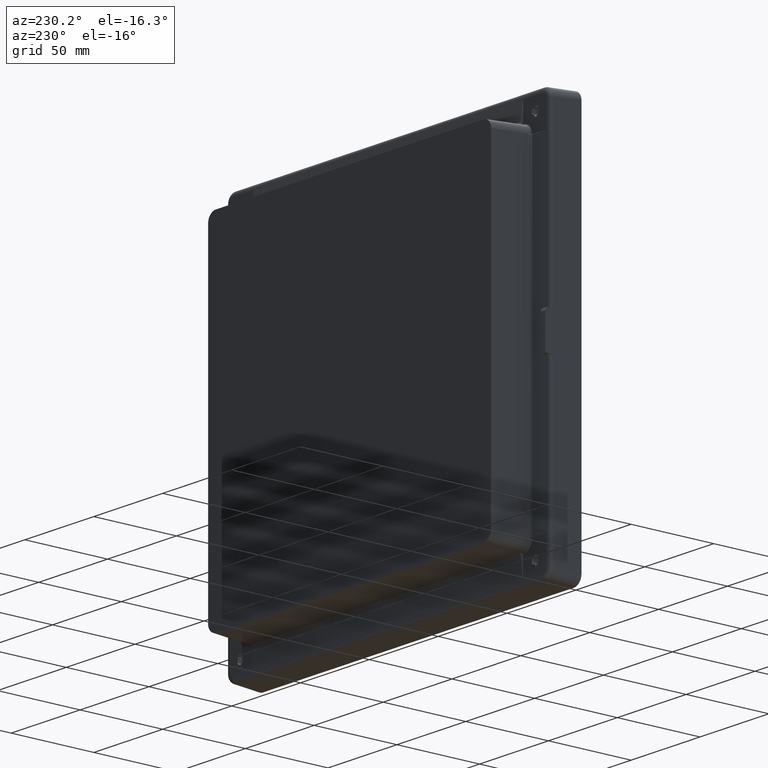
[diagram: clean part render]
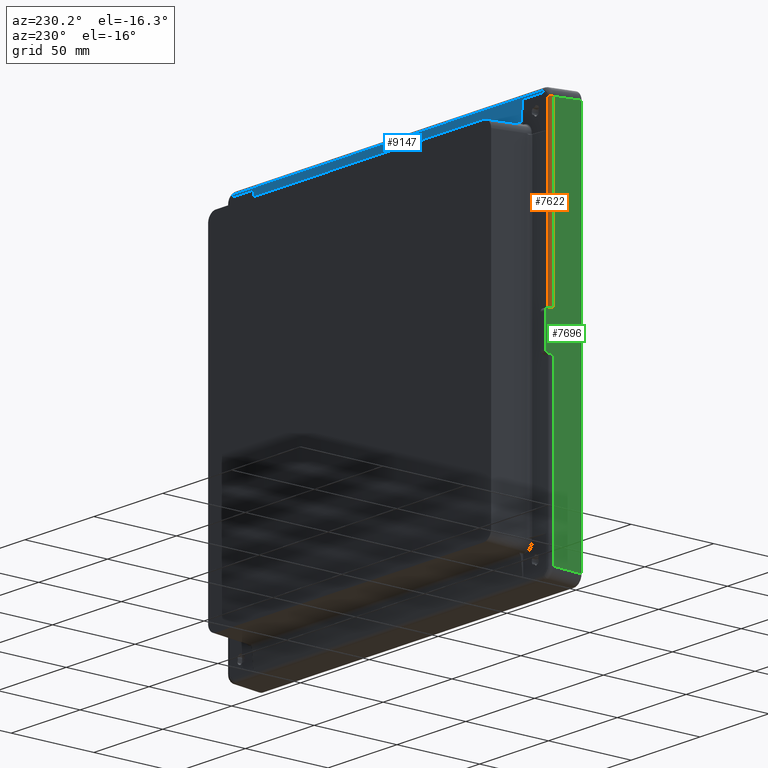
[diagram: same view with three faces highlighted in distinct colors, each labeled with its STEP entity id]
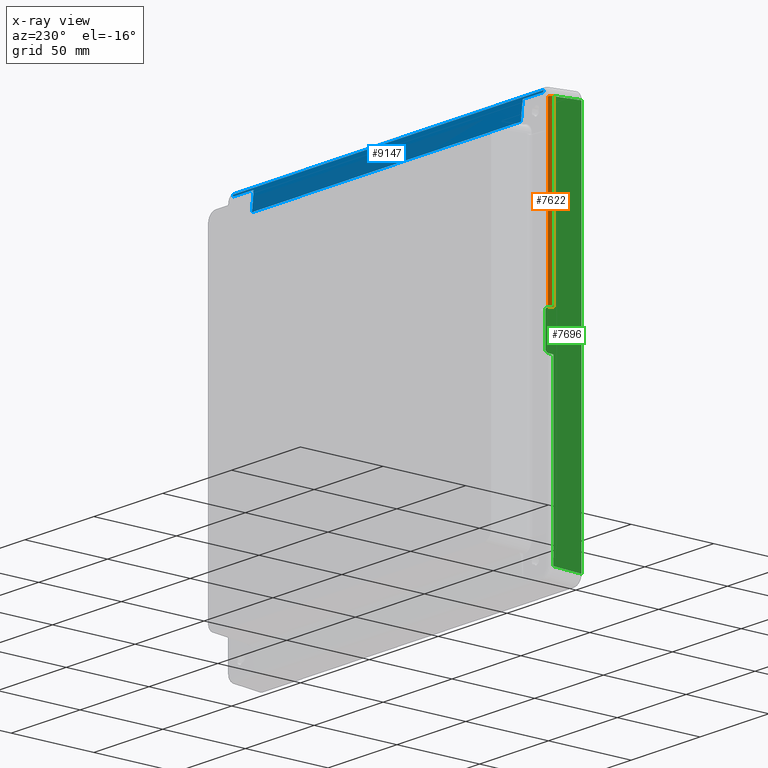
[diagram: x-ray of the same camera — body ghosted, the three highlighted faces saturated]
A machine part, auxiliary view with three faces highlighted in distinct colors.
The next image is the same camera in x-ray (body ghosted, the three faces saturated) — at least one of them is partly hidden behind the body in this view.
Their STEP definitions:

[orange] entity #7622 — the highlighted cylindrical surface (edge-blend (fillet) strip) has radius 2 mm, axis along (-0, 0, -1).
#3886 = VERTEX_POINT ( 'NONE', #5850 ) ;
#3888 = EDGE_CURVE ( 'NONE', #3889, #3886, #5846, .T. ) ;
#3889 = VERTEX_POINT ( 'NONE', #5885 ) ;
#5846 =( BOUNDED_CURVE ( )  B_SPLINE_CURVE ( 3, ( #5889, #5888, #5887, #5886 ),
 .UNSPECIFIED., .F., .T. ) 
 B_SPLINE_CURVE_WITH_KNOTS ( ( 4, 4 ),
 ( 1.331806843626867100E-013, 1.422443340375380700 ),
 .UNSPECIFIED. ) 
 CURVE ( )  GEOMETRIC_REPRESENTATION_ITEM ( )  RATIONAL_B_SPLINE_CURVE ( ( 1.000000000000000000, 0.8383766562560615000, 0.8383766562560615000, 1.000000000000000000 ) ) 
 REPRESENTATION_ITEM ( '' )  );
#5850 = CARTESIAN_POINT ( 'NONE',  ( -93.56611329716517400, 8.279051483778987500, 11.29654617042633700 ) ) ;
#5885 = CARTESIAN_POINT ( 'NONE',  ( -91.76054573269672700, 10.16517196802745500, 11.20722333784912500 ) ) ;
#5886 = CARTESIAN_POINT ( 'NONE',  ( -93.56611329716517400, 8.279051483778987500, 11.29654617042633700 ) ) ;
#5887 = CARTESIAN_POINT ( 'NONE',  ( -93.51178162243462600, 9.315761595785755100, 11.24273753937605300 ) ) ;
#5888 = CARTESIAN_POINT ( 'NONE',  ( -92.79389921202670200, 10.06567134505099600, 11.20722333784914100 ) ) ;
#5889 = CARTESIAN_POINT ( 'NONE',  ( -91.76054573269672700, 10.16517196802745500, 11.20722333784912500 ) ) ;
#6088 = EDGE_CURVE ( 'NONE', #6089, #6888, #8331, .T. ) ;
#6089 = VERTEX_POINT ( 'NONE', #8332 ) ;
#6888 = VERTEX_POINT ( 'NONE', #10638 ) ;
#7596 = ORIENTED_EDGE ( 'NONE', *, *, #7613, .F. ) ;
#7601 = ORIENTED_EDGE ( 'NONE', *, *, #7614, .F. ) ;
#7604 = ORIENTED_EDGE ( 'NONE', *, *, #6088, .T. ) ;
#7613 = EDGE_CURVE ( 'NONE', #3889, #6888, #13516, .T. ) ;
#7614 = EDGE_CURVE ( 'NONE', #6089, #3886, #13497, .T. ) ;
#7622 = ADVANCED_FACE ( 'NONE', ( #13533 ), #13531, .T. ) ;
#7642 = ORIENTED_EDGE ( 'NONE', *, *, #3888, .T. ) ;
#7658 = EDGE_LOOP ( 'NONE', ( #7642, #7601, #7604, #7596 ) ) ;
#8328 = DIRECTION ( 'NONE',  ( -1.000000000000000000, 0.0000000000000000000, 0.0000000000000000000 ) ) ;
#8329 = DIRECTION ( 'NONE',  ( -9.570712058345189900E-017, 3.359901479150509800E-020, -1.000000000000000000 ) ) ;
#8330 = AXIS2_PLACEMENT_3D ( 'NONE', #8338, #8329, #8328 ) ;
#8331 = CIRCLE ( 'NONE', #8330, 2.000000000000001800 ) ;
#8332 = CARTESIAN_POINT ( 'NONE',  ( -93.56611329716516000, 8.279051483778994600, 113.7736508560149400 ) ) ;
#8338 = CARTESIAN_POINT ( 'NONE',  ( -91.56885422765599000, 8.174379571293100000, 113.7736508560149400 ) ) ;
#10638 = CARTESIAN_POINT ( 'NONE',  ( -91.76054573269681200, 10.16517196802747200, 113.7736508560149700 ) ) ;
#13494 = DIRECTION ( 'NONE',  ( -3.170101793502812600E-016, -7.925254483757031400E-017, -1.000000000000000000 ) ) ;
#13495 = VECTOR ( 'NONE', #13494, 1000.000000000000000 ) ;
#13496 = CARTESIAN_POINT ( 'NONE',  ( -93.56611329716516000, 8.279051483778992800, 91.88509851322068300 ) ) ;
#13497 = LINE ( 'NONE', #13496, #13495 ) ;
#13498 = DIRECTION ( 'NONE',  ( 8.031668729409170800E-015, 7.649208313723020000E-016, 1.000000000000000000 ) ) ;
#13499 = VECTOR ( 'NONE', #13498, 1000.000000000000000 ) ;
#13500 = CARTESIAN_POINT ( 'NONE',  ( -91.76054573269684100, 10.16517196802746300, 29.35000000000000100 ) ) ;
#13516 = LINE ( 'NONE', #13500, #13499 ) ;
#13527 = DIRECTION ( 'NONE',  ( -1.000000000000000000, 0.0000000000000000000, 0.0000000000000000000 ) ) ;
#13528 = DIRECTION ( 'NONE',  ( -9.570712058345189900E-017, 3.359901479150509800E-020, -1.000000000000000000 ) ) ;
#13529 = CARTESIAN_POINT ( 'NONE',  ( -91.56885422765599000, 8.174379571293100000, 170.3000000000000100 ) ) ;
#13530 = AXIS2_PLACEMENT_3D ( 'NONE', #13529, #13528, #13527 ) ;
#13531 = CYLINDRICAL_SURFACE ( 'NONE', #13530, 2.000000000000001800 ) ;
#13533 = FACE_OUTER_BOUND ( 'NONE', #7658, .T. ) ;

[blue] entity #9147 — the highlighted planar face has unit normal (0, 0.9954, 0.0958).
#451 = ORIENTED_EDGE ( 'NONE', *, *, #8790, .F. ) ;
#456 = ORIENTED_EDGE ( 'NONE', *, *, #6940, .F. ) ;
#457 = ORIENTED_EDGE ( 'NONE', *, *, #7057, .F. ) ;
#458 = ORIENTED_EDGE ( 'NONE', *, *, #3287, .T. ) ;
#459 = ORIENTED_EDGE ( 'NONE', *, *, #6275, .T. ) ;
#1881 = DIRECTION ( 'NONE',  ( -1.000000000000000000, 1.776857383966246500E-017, 0.0000000000000000000 ) ) ;
#1882 = VECTOR ( 'NONE', #1881, 1000.000000000000000 ) ;
#1883 = CARTESIAN_POINT ( 'NONE',  ( -24.81437001163847400, 11.33487797383372900, 105.3126843953760000 ) ) ;
#1884 = LINE ( 'NONE', #1883, #1882 ) ;
#2519 = CARTESIAN_POINT ( 'NONE',  ( -88.07365085601500700, 10.16517196802748500, 117.4605457326965400 ) ) ;
#2522 = CARTESIAN_POINT ( 'NONE',  ( -89.07381349761330100, 10.17930910618067800, 117.3137259393989500 ) ) ;
#2523 = CARTESIAN_POINT ( 'NONE',  ( -88.96553362698117000, 10.17618133250312500, 117.3462091110171700 ) ) ;
#2524 = CARTESIAN_POINT ( 'NONE',  ( -88.74704839463714700, 10.17096336594562300, 117.4003997656676600 ) ) ;
#2525 = CARTESIAN_POINT ( 'NONE',  ( -88.41164096656496000, 10.16622243586983200, 117.4496362070340000 ) ) ;
#2526 = CARTESIAN_POINT ( 'NONE',  ( -88.18674139327309500, 10.16517322947808400, 117.4605326320312700 ) ) ;
#2527 = CARTESIAN_POINT ( 'NONE',  ( -88.07365085601500700, 10.16517196802748500, 117.4605457326965400 ) ) ;
#2528 = B_SPLINE_CURVE_WITH_KNOTS ( 'NONE', 3,
 ( #2527, #2526, #2525, #2524, #2523, #2522 ),
 .UNSPECIFIED., .F., .F.,
 ( 4, 1, 1, 4 ),
 ( 0.0000000000000000000, 0.0003380648899097302200, 0.0006761391703260633400, 0.001014204060237347500 ),
 .UNSPECIFIED. ) ;
#2536 = DIRECTION ( 'NONE',  ( 0.0000000000000000000, -0.09584575252022101100, 0.9953961983671790700 ) ) ;
#2537 = DIRECTION ( 'NONE',  ( 1.132255010869580200E-017, 0.9953961983671790700, 0.09584575252022101100 ) ) ;
#2538 = CARTESIAN_POINT ( 'NONE',  ( -93.47592220716960300, 10.00000000000000000, 119.1759222071700000 ) ) ;
#2539 = AXIS2_PLACEMENT_3D ( 'NONE', #2538, #2537, #2536 ) ;
#2547 = FACE_OUTER_BOUND ( 'NONE', #9050, .T. ) ;
#2549 = PLANE ( 'NONE',  #2539 ) ;
#2569 = VECTOR ( 'NONE', #2611, 1000.000000000000100 ) ;
#2570 = CARTESIAN_POINT ( 'NONE',  ( 136.6389559685818500, 10.22118112375264700, 116.8788684103674900 ) ) ;
#2571 = LINE ( 'NONE', #2570, #2569 ) ;
#2572 = CARTESIAN_POINT ( 'NONE',  ( 137.0738134976133400, 10.17930910618067500, 117.3137259393989500 ) ) ;
#2611 = DIRECTION ( 'NONE',  ( -0.7054734583899364700, 0.06792936783698691500, -0.7054734583899027200 ) ) ;
#2637 = CARTESIAN_POINT ( 'NONE',  ( 136.2040984395498000, 10.26305314132459900, 116.4440108813355400 ) ) ;
#3287 = EDGE_CURVE ( 'NONE', #3322, #6263, #1884, .T. ) ;
#3322 = VERTEX_POINT ( 'NONE', #4351 ) ;
#3330 = VERTEX_POINT ( 'NONE', #4336 ) ;
#3355 = EDGE_CURVE ( 'NONE', #3322, #3330, #4385, .T. ) ;
#4336 = CARTESIAN_POINT ( 'NONE',  ( 121.6849119825291400, 10.26305314132459900, 116.4440108813359800 ) ) ;
#4351 = CARTESIAN_POINT ( 'NONE',  ( 121.6287400232769900, 11.33487797383372900, 105.3126843953760000 ) ) ;
#4379 = DIRECTION ( 'NONE',  ( 0.005022999675629506500, -0.09584454339323132700, 0.9953836411032691600 ) ) ;
#4380 = VECTOR ( 'NONE', #4379, 1000.000000000000100 ) ;
#4381 = CARTESIAN_POINT ( 'NONE',  ( 121.6568260029030600, 10.79896555757917500, 110.8783476383559900 ) ) ;
#4385 = LINE ( 'NONE', #4381, #4380 ) ;
#6142 = VERTEX_POINT ( 'NONE', #8559 ) ;
#6263 = VERTEX_POINT ( 'NONE', #8892 ) ;
#6275 = EDGE_CURVE ( 'NONE', #6263, #6142, #8934, .T. ) ;
#6935 = VERTEX_POINT ( 'NONE', #10785 ) ;
#6940 = EDGE_CURVE ( 'NONE', #6935, #6942, #10773, .T. ) ;
#6942 = VERTEX_POINT ( 'NONE', #10769 ) ;
#7057 = EDGE_CURVE ( 'NONE', #6942, #6142, #11409, .T. ) ;
#7573 = EDGE_CURVE ( 'NONE', #8855, #7579, #13103, .T. ) ;
#7579 = VERTEX_POINT ( 'NONE', #13138 ) ;
#7664 = EDGE_CURVE ( 'NONE', #7579, #9237, #13670, .T. ) ;
#8074 = EDGE_CURVE ( 'NONE', #9583, #3330, #14577, .T. ) ;
#8559 = CARTESIAN_POINT ( 'NONE',  ( -73.68491198252911500, 10.26305314132459900, 116.4440108813360100 ) ) ;
#8712 = ORIENTED_EDGE ( 'NONE', *, *, #9247, .T. ) ;
#8714 = ORIENTED_EDGE ( 'NONE', *, *, #8074, .T. ) ;
#8721 = ORIENTED_EDGE ( 'NONE', *, *, #7664, .T. ) ;
#8790 = EDGE_CURVE ( 'NONE', #8855, #6935, #2528, .T. ) ;
#8855 = VERTEX_POINT ( 'NONE', #2519 ) ;
#8867 = ORIENTED_EDGE ( 'NONE', *, *, #3355, .F. ) ;
#8892 = CARTESIAN_POINT ( 'NONE',  ( -73.62874002327696100, 11.33487797383373100, 105.3126843953760000 ) ) ;
#8931 = DIRECTION ( 'NONE',  ( -0.005022999675629506500, -0.09584454339323099400, 0.9953836411032690500 ) ) ;
#8932 = VECTOR ( 'NONE', #8931, 1000.000000000000100 ) ;
#8933 = CARTESIAN_POINT ( 'NONE',  ( -73.65682600290303100, 10.79896555757917800, 110.8783476383559900 ) ) ;
#8934 = LINE ( 'NONE', #8933, #8932 ) ;
#9023 = ORIENTED_EDGE ( 'NONE', *, *, #7573, .T. ) ;
#9050 = EDGE_LOOP ( 'NONE', ( #9023, #8721, #8712, #8714, #8867, #458, #459, #457, #456, #451 ) ) ;
#9147 = ADVANCED_FACE ( 'NONE', ( #2547 ), #2549, .T. ) ;
#9237 = VERTEX_POINT ( 'NONE', #2572 ) ;
#9247 = EDGE_CURVE ( 'NONE', #9237, #9583, #2571, .T. ) ;
#9583 = VERTEX_POINT ( 'NONE', #2637 ) ;
#10769 = CARTESIAN_POINT ( 'NONE',  ( -88.20409843954982400, 10.26305314132459900, 116.4440108813355700 ) ) ;
#10770 = DIRECTION ( 'NONE',  ( 0.7054734583899307000, 0.06792936783698887100, -0.7054734583899082700 ) ) ;
#10771 = VECTOR ( 'NONE', #10770, 1000.000000000000100 ) ;
#10772 = CARTESIAN_POINT ( 'NONE',  ( -88.63895596858181100, 10.22118112375265200, 116.8788684103674900 ) ) ;
#10773 = LINE ( 'NONE', #10772, #10771 ) ;
#10785 = CARTESIAN_POINT ( 'NONE',  ( -89.07381349761330100, 10.17930910618067800, 117.3137259393989500 ) ) ;
#11409 = LINE ( 'NONE', #11442, #11441 ) ;
#11440 = DIRECTION ( 'NONE',  ( 1.000000000000000000, 0.0000000000000000000, 0.0000000000000000000 ) ) ;
#11441 = VECTOR ( 'NONE', #11440, 1000.000000000000000 ) ;
#11442 = CARTESIAN_POINT ( 'NONE',  ( -80.94450521103971100, 10.26305314132462400, 116.4440108813360000 ) ) ;
#13100 = DIRECTION ( 'NONE',  ( 1.000000000000000000, -1.547842390006075900E-017, 0.0000000000000000000 ) ) ;
#13101 = VECTOR ( 'NONE', #13100, 1000.000000000000000 ) ;
#13102 = CARTESIAN_POINT ( 'NONE',  ( -32.03682542800748200, 10.16517196802754300, 117.4605457326960000 ) ) ;
#13103 = LINE ( 'NONE', #13102, #13101 ) ;
#13138 = CARTESIAN_POINT ( 'NONE',  ( 136.0736508560149800, 10.16517196802754300, 117.4605457326960000 ) ) ;
#13663 = CARTESIAN_POINT ( 'NONE',  ( 137.0738134976133400, 10.17930910618067500, 117.3137259393989500 ) ) ;
#13664 = CARTESIAN_POINT ( 'NONE',  ( 136.9655336269812600, 10.17618133250312200, 117.3462091110171700 ) ) ;
#13665 = CARTESIAN_POINT ( 'NONE',  ( 136.7470483946371800, 10.17096336594562400, 117.4003997656676600 ) ) ;
#13666 = CARTESIAN_POINT ( 'NONE',  ( 136.4116409665649900, 10.16622243586982500, 117.4496362070339500 ) ) ;
#13667 = CARTESIAN_POINT ( 'NONE',  ( 136.1867413932731100, 10.16517322947808000, 117.4605326320312900 ) ) ;
#13668 = CARTESIAN_POINT ( 'NONE',  ( 136.0736508560149800, 10.16517196802754300, 117.4605457326960000 ) ) ;
#13670 = B_SPLINE_CURVE_WITH_KNOTS ( 'NONE', 3,
 ( #13668, #13667, #13666, #13665, #13664, #13663 ),
 .UNSPECIFIED., .F., .F.,
 ( 4, 1, 1, 4 ),
 ( 0.0000000000000000000, 0.0003380648899097870400, 0.0006761391703260749400, 0.001014204060237399600 ),
 .UNSPECIFIED. ) ;
#14574 = DIRECTION ( 'NONE',  ( -1.000000000000000000, 0.0000000000000000000, 0.0000000000000000000 ) ) ;
#14575 = VECTOR ( 'NONE', #14574, 1000.000000000000000 ) ;
#14576 = CARTESIAN_POINT ( 'NONE',  ( 128.9445052110397700, 10.26305314132462100, 116.4440108813360000 ) ) ;
#14577 = LINE ( 'NONE', #14576, #14575 ) ;

[green] entity #7696 — the highlighted planar face has unit normal (-0.9986, 0.0523, 0).
#407 = VERTEX_POINT ( 'NONE', #3937 ) ;
#467 = VERTEX_POINT ( 'NONE', #4058 ) ;
#493 = EDGE_CURVE ( 'NONE', #467, #3895, #4081, .T. ) ;
#494 = EDGE_CURVE ( 'NONE', #3896, #3876, #4077, .T. ) ;
#3463 = VERTEX_POINT ( 'NONE', #4678 ) ;
#3614 = EDGE_CURVE ( 'NONE', #3463, #407, #5111, .T. ) ;
#3876 = VERTEX_POINT ( 'NONE', #5824 ) ;
#3878 = EDGE_CURVE ( 'NONE', #3876, #3879, #5823, .T. ) ;
#3879 = VERTEX_POINT ( 'NONE', #5822 ) ;
#3885 = EDGE_CURVE ( 'NONE', #3886, #3879, #5854, .T. ) ;
#3886 = VERTEX_POINT ( 'NONE', #5850 ) ;
#3894 = EDGE_CURVE ( 'NONE', #3895, #3896, #5872, .T. ) ;
#3895 = VERTEX_POINT ( 'NONE', #5874 ) ;
#3896 = VERTEX_POINT ( 'NONE', #5873 ) ;
#3937 = CARTESIAN_POINT ( 'NONE',  ( -93.56611329716518800, 8.279051483778996400, -113.7736508560148500 ) ) ;
#4058 = CARTESIAN_POINT ( 'NONE',  ( -93.56611329716517400, 8.279051483778983900, -11.29654617042633500 ) ) ;
#4074 = DIRECTION ( 'NONE',  ( 0.0000000000000000000, 2.843165499810387300E-016, 1.000000000000000000 ) ) ;
#4075 = VECTOR ( 'NONE', #4074, 1000.000000000000000 ) ;
#4076 = CARTESIAN_POINT ( 'NONE',  ( -93.31717058897498900, 13.02916132616919700, 1.847480501915299600E-013 ) ) ;
#4077 = LINE ( 'NONE', #4076, #4075 ) ;
#4078 = DIRECTION ( 'NONE',  ( 0.05226579549632669200, 0.9972907879583734500, 0.05176263975593405800 ) ) ;
#4079 = VECTOR ( 'NONE', #4078, 1000.000000000000200 ) ;
#4080 = CARTESIAN_POINT ( 'NONE',  ( -93.49178967655386400, 9.697230647790483700, -11.22293805325281800 ) ) ;
#4081 = LINE ( 'NONE', #4080, #4079 ) ;
#4678 = CARTESIAN_POINT ( 'NONE',  ( -94.41926223426425200, -8.000000000000000000, -114.6267997931140200 ) ) ;
#5108 = DIRECTION ( 'NONE',  ( 0.05226442768871351200, 0.9972646886342373400, 0.05226442768871351200 ) ) ;
#5109 = VECTOR ( 'NONE', #5108, 1000.000000000000100 ) ;
#5110 = CARTESIAN_POINT ( 'NONE',  ( -93.99268776571476300, 0.1395257418895096100, -114.2002253245644300 ) ) ;
#5111 = LINE ( 'NONE', #5110, #5109 ) ;
#5822 = CARTESIAN_POINT ( 'NONE',  ( -93.41746605594251200, 11.11540981180253200, 11.14932993607941100 ) ) ;
#5823 =( BOUNDED_CURVE ( )  B_SPLINE_CURVE ( 3, ( #5867, #5866, #5865, #5864 ),
 .UNSPECIFIED., .F., .T. ) 
 B_SPLINE_CURVE_WITH_KNOTS ( ( 4, 4 ),
 ( 3.141592653589793100, 4.660029102824877300 ),
 .UNSPECIFIED. ) 
 CURVE ( )  GEOMETRIC_REPRESENTATION_ITEM ( )  RATIONAL_B_SPLINE_CURVE ( ( 1.000000000000000000, 0.8169162473415211300, 0.8169162473415211300, 1.000000000000000000 ) ) 
 REPRESENTATION_ITEM ( '' )  );
#5824 = CARTESIAN_POINT ( 'NONE',  ( -93.31717058897498900, 13.02916132616920000, 9.152070866570241500 ) ) ;
#5850 = CARTESIAN_POINT ( 'NONE',  ( -93.56611329716517400, 8.279051483778987500, 11.29654617042633700 ) ) ;
#5851 = DIRECTION ( 'NONE',  ( 0.05226579549633228500, 0.9972907879583767800, -0.05176263975586600800 ) ) ;
#5852 = VECTOR ( 'NONE', #5851, 1000.000000000000100 ) ;
#5853 = CARTESIAN_POINT ( 'NONE',  ( -93.49178967655383600, 9.697230647790993500, 11.22293805325288900 ) ) ;
#5854 = LINE ( 'NONE', #5853, #5852 ) ;
#5864 = CARTESIAN_POINT ( 'NONE',  ( -93.41746605594251200, 11.11540981180253200, 11.14932993607941100 ) ) ;
#5865 = CARTESIAN_POINT ( 'NONE',  ( -93.35809500739769400, 12.24827690437991900, 11.09053044458461400 ) ) ;
#5866 = CARTESIAN_POINT ( 'NONE',  ( -93.31717058897497500, 13.02916132616920000, 10.27557171982394600 ) ) ;
#5867 = CARTESIAN_POINT ( 'NONE',  ( -93.31717058897498900, 13.02916132616920000, 9.152070866570241500 ) ) ;
#5868 = CARTESIAN_POINT ( 'NONE',  ( -93.31717058897498900, 13.02916132616920000, -9.152070866570241500 ) ) ;
#5869 = CARTESIAN_POINT ( 'NONE',  ( -93.31717058897498900, 13.02916132616919900, -10.27557171982391500 ) ) ;
#5870 = CARTESIAN_POINT ( 'NONE',  ( -93.35809500739767900, 12.24827690437994800, -11.09053044458457300 ) ) ;
#5871 = CARTESIAN_POINT ( 'NONE',  ( -93.41746605594251200, 11.11540981180259500, -11.14932993607936000 ) ) ;
#5872 =( BOUNDED_CURVE ( )  B_SPLINE_CURVE ( 3, ( #5871, #5870, #5869, #5868 ),
 .UNSPECIFIED., .F., .T. ) 
 B_SPLINE_CURVE_WITH_KNOTS ( ( 4, 4 ),
 ( 4.764748857944534100, 6.283185307179584500 ),
 .UNSPECIFIED. ) 
 CURVE ( )  GEOMETRIC_REPRESENTATION_ITEM ( )  RATIONAL_B_SPLINE_CURVE ( ( 1.000000000000000000, 0.8169162473415287900, 0.8169162473415287900, 1.000000000000000000 ) ) 
 REPRESENTATION_ITEM ( '' )  );
#5873 = CARTESIAN_POINT ( 'NONE',  ( -93.31717058897498900, 13.02916132616920000, -9.152070866570241500 ) ) ;
#5874 = CARTESIAN_POINT ( 'NONE',  ( -93.41746605594251200, 11.11540981180259500, -11.14932993607936000 ) ) ;
#6089 = VERTEX_POINT ( 'NONE', #8332 ) ;
#6899 = VERTEX_POINT ( 'NONE', #10630 ) ;
#6977 = EDGE_CURVE ( 'NONE', #6089, #6899, #10881, .T. ) ;
#7614 = EDGE_CURVE ( 'NONE', #6089, #3886, #13497, .T. ) ;
#7621 = EDGE_CURVE ( 'NONE', #467, #407, #13537, .T. ) ;
#7670 = ORIENTED_EDGE ( 'NONE', *, *, #6977, .F. ) ;
#7672 = ORIENTED_EDGE ( 'NONE', *, *, #493, .F. ) ;
#7675 = EDGE_CURVE ( 'NONE', #6899, #3463, #13703, .T. ) ;
#7684 = EDGE_LOOP ( 'NONE', ( #7690, #7710, #7704, #7670, #7708, #7699, #7691, #7689, #7686, #7672 ) ) ;
#7686 = ORIENTED_EDGE ( 'NONE', *, *, #3894, .F. ) ;
#7689 = ORIENTED_EDGE ( 'NONE', *, *, #494, .F. ) ;
#7690 = ORIENTED_EDGE ( 'NONE', *, *, #7621, .T. ) ;
#7691 = ORIENTED_EDGE ( 'NONE', *, *, #3878, .F. ) ;
#7696 = ADVANCED_FACE ( 'NONE', ( #13855 ), #13854, .T. ) ;
#7699 = ORIENTED_EDGE ( 'NONE', *, *, #3885, .T. ) ;
#7704 = ORIENTED_EDGE ( 'NONE', *, *, #7675, .F. ) ;
#7708 = ORIENTED_EDGE ( 'NONE', *, *, #7614, .T. ) ;
#7710 = ORIENTED_EDGE ( 'NONE', *, *, #3614, .F. ) ;
#8332 = CARTESIAN_POINT ( 'NONE',  ( -93.56611329716516000, 8.279051483778994600, 113.7736508560149400 ) ) ;
#10630 = CARTESIAN_POINT ( 'NONE',  ( -94.41926223426411000, -7.999999999999998200, 114.6267997931140200 ) ) ;
#10878 = DIRECTION ( 'NONE',  ( -0.05226442768871350500, -0.9972646886342373400, 0.05226442768871350500 ) ) ;
#10879 = VECTOR ( 'NONE', #10878, 1000.000000000000100 ) ;
#10880 = CARTESIAN_POINT ( 'NONE',  ( -93.99268776571457800, 0.1395257418894974600, 114.2002253245644400 ) ) ;
#10881 = LINE ( 'NONE', #10880, #10879 ) ;
#13494 = DIRECTION ( 'NONE',  ( -3.170101793502812600E-016, -7.925254483757031400E-017, -1.000000000000000000 ) ) ;
#13495 = VECTOR ( 'NONE', #13494, 1000.000000000000000 ) ;
#13496 = CARTESIAN_POINT ( 'NONE',  ( -93.56611329716516000, 8.279051483778992800, 91.88509851322068300 ) ) ;
#13497 = LINE ( 'NONE', #13496, #13495 ) ;
#13534 = DIRECTION ( 'NONE',  ( -3.843527099806534100E-016, -4.804408874758167600E-017, -1.000000000000000000 ) ) ;
#13535 = VECTOR ( 'NONE', #13534, 1000.000000000000000 ) ;
#13536 = CARTESIAN_POINT ( 'NONE',  ( -93.56611329716518800, 8.279051483778994600, -29.34999999999995200 ) ) ;
#13537 = LINE ( 'NONE', #13536, #13535 ) ;
#13695 = DIRECTION ( 'NONE',  ( 0.0000000000000000000, 0.0000000000000000000, -1.000000000000000000 ) ) ;
#13696 = VECTOR ( 'NONE', #13695, 1000.000000000000000 ) ;
#13697 = CARTESIAN_POINT ( 'NONE',  ( -94.41926223426401100, -8.000000000000000000, 0.0000000000000000000 ) ) ;
#13703 = LINE ( 'NONE', #13697, #13696 ) ;
#13850 = DIRECTION ( 'NONE',  ( -0.05233595624294390400, -0.9986295347545739400, 0.0000000000000000000 ) ) ;
#13851 = DIRECTION ( 'NONE',  ( -0.9986295347545739400, 0.05233595624294390400, 9.557771573752039200E-017 ) ) ;
#13852 = AXIS2_PLACEMENT_3D ( 'NONE', #13853, #13851, #13850 ) ;
#13853 = CARTESIAN_POINT ( 'NONE',  ( -93.99999999999998600, 0.0000000000000000000, 170.3000000000000100 ) ) ;
#13854 = PLANE ( 'NONE',  #13852 ) ;
#13855 = FACE_OUTER_BOUND ( 'NONE', #7684, .T. ) ;